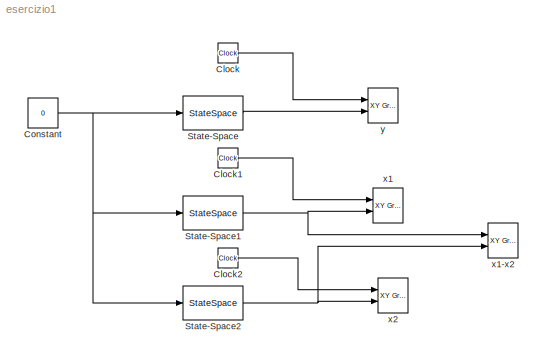
MODEL esercizio1
KIND model
BLOCK [Clock] Clock
  SID = 1
BLOCK [Clock] Clock1
  SID = 2
BLOCK [Clock] Clock2
  SID = 3
BLOCK [Constant] Constant
  SID = 4
  Value = 0
BLOCK [StateSpace] State-Space
  A = [-1 -10;10 -1]
  B = [1 2]'
  C = [1 -1]
  D = 0
  Ports = [1, 1]
  SID = 5
  X0 = [1 1]'
BLOCK [StateSpace] State-Space1
  A = [-1 -10;10 -1]
  B = [1 2]'
  C = [1 0]
  D = 0
  Ports = [1, 1]
  SID = 6
  X0 = [1 1]'
BLOCK [StateSpace] State-Space2
  A = [-1 -10;10 -1]
  B = [1 2]'
  C = [0 1]
  D = 0
  Ports = [1, 1]
  SID = 7
  X0 = [1 1]'
BLOCK [Reference] x1  REF=simulink/Sinks/XY Graph
  Ports = [2]
  SID = 8
  SourceBlock = simulink/Sinks/XY Graph
  SourceType = XY scope.
  st = 0.01
  xmax = 10
  xmin = 0
  ymax = 1.5
  ymin = -1.5
BLOCK [Reference] x1-x2  REF=simulink/Sinks/XY Graph
  Ports = [2]
  SID = 9
  SourceBlock = simulink/Sinks/XY Graph
  SourceType = XY scope.
  st = 0.01
  xmax = 1.5
  xmin = -1.5
  ymax = 1.5
  ymin = -1.5
BLOCK [Reference] x2  REF=simulink/Sinks/XY Graph
  Ports = [2]
  SID = 10
  SourceBlock = simulink/Sinks/XY Graph
  SourceType = XY scope.
  st = 0.01
  xmax = 10
  xmin = 0
  ymax = 1.5
  ymin = -1.5
BLOCK [Reference] y  REF=simulink/Sinks/XY Graph
  Ports = [2]
  SID = 11
  SourceBlock = simulink/Sinks/XY Graph
  SourceType = XY scope.
  st = 0.01
  xmax = 10
  xmin = 0
  ymax = 2
  ymin = -2.2
LINE Clock1:1 -> x1:1
LINE Clock2:1 -> x2:1
LINE Clock:1 -> y:1
NET Constant:1 -> State-Space1:1, State-Space2:1, State-Space:1
NET State-Space1:1 -> x1-x2:1, x1:2
NET State-Space2:1 -> x1-x2:2, x2:2
LINE State-Space:1 -> y:2
note: NET lines group one-source signal fan-out (src -> all destinations, sorted); 1:1 wires keep LINE
